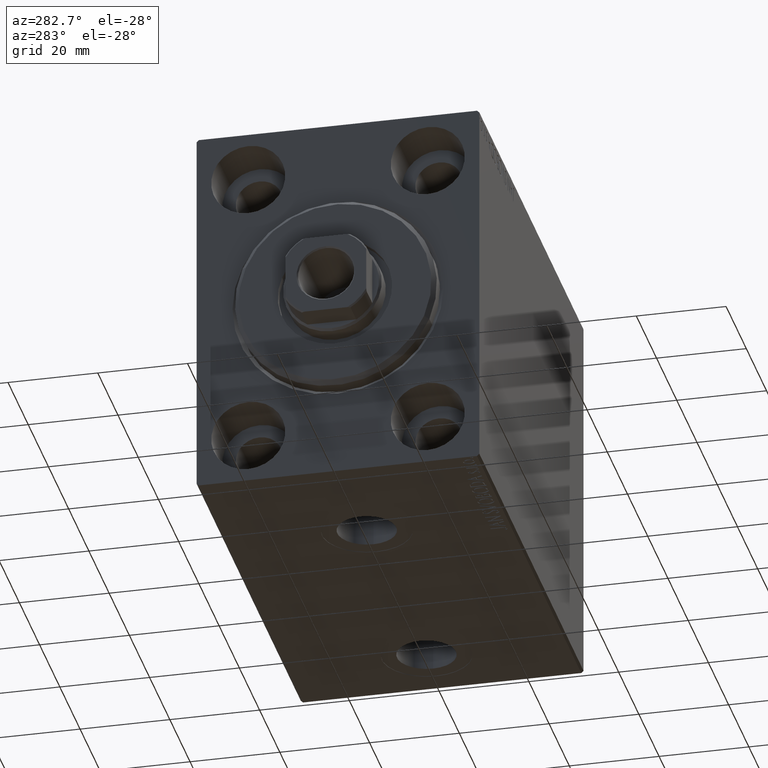
[diagram: clean part render]
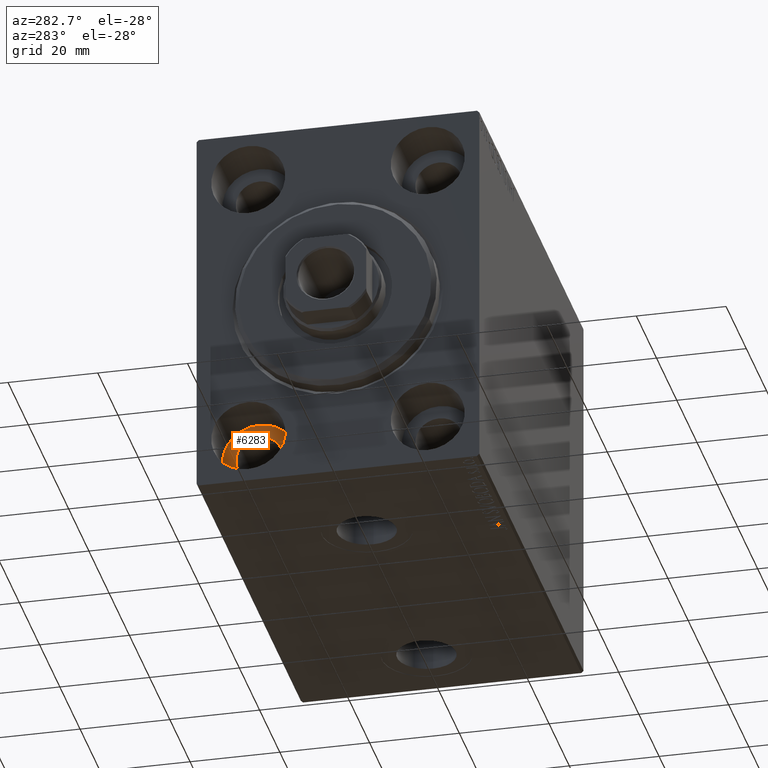
[diagram: same view with one face highlighted and labeled with its STEP entity id]
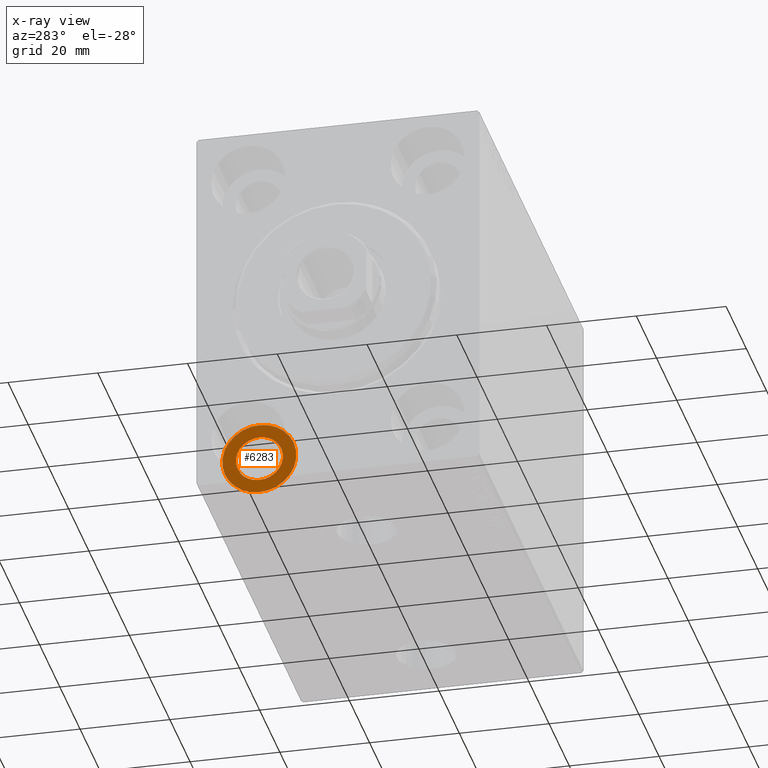
[diagram: x-ray of the same camera — body ghosted, the highlighted face saturated]
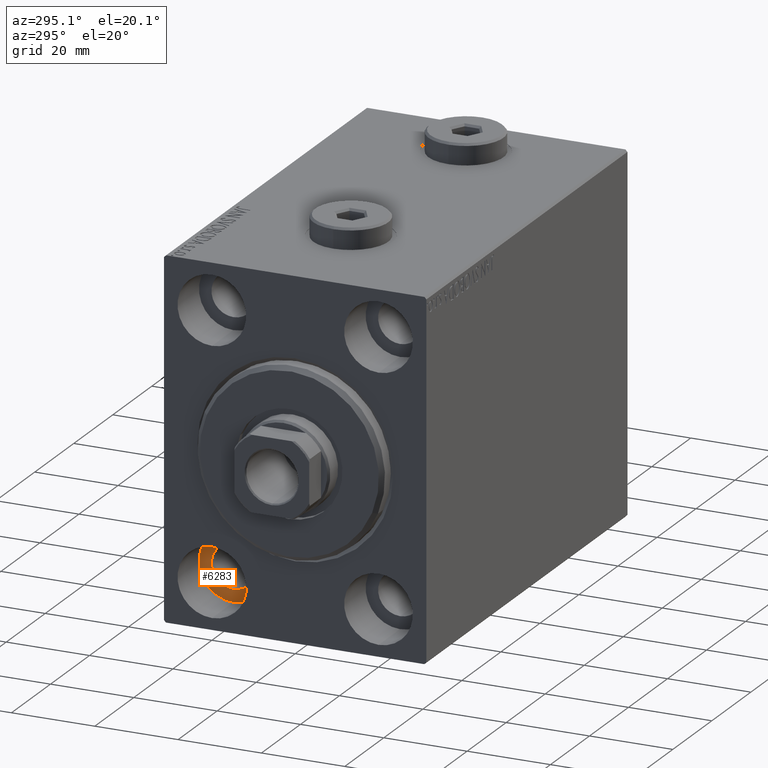
[diagram: same view with one face highlighted and labeled with its STEP entity id]
A machine part, auxiliary view. The second image highlights one B-rep face of the part: STEP entity #6283.
The next image is the same camera in x-ray: the body ghosted, the highlighted face saturated — about 0% of this face is hidden behind the body in this view.
A second angle (auxiliary view) of the same face is appended — the face is thin or edge-on in the first view.
In plain terms, the highlighted planar face has unit normal (-1, 0, 0).
Its self-contained STEP definition (entity closure, byte-faithful):
#814 = CIRCLE ( 'NONE', #5927, 5.250000000000000888 ) ;
#932 = VERTEX_POINT ( 'NONE', #28193 ) ;
#1405 = CARTESIAN_POINT ( 'NONE',  ( 11.00000000000000000, 19.99999999999999645, -31.49999999999999289 ) ) ;
#1628 = DIRECTION ( 'NONE',  ( -1.000000000000000000, 0.000000000000000000, 0.000000000000000000 ) ) ;
#2539 = EDGE_CURVE ( 'NONE', #41600, #16543, #25331, .T. ) ;
#2682 = CIRCLE ( 'NONE', #5565, 8.250000000000000000 ) ;
#4431 = DIRECTION ( 'NONE',  ( -1.000000000000000000, 0.000000000000000000, 0.000000000000000000 ) ) ;
#5565 = AXIS2_PLACEMENT_3D ( 'NONE', #36191, #4431, #21795 ) ;
#5927 = AXIS2_PLACEMENT_3D ( 'NONE', #28408, #7831, #14230 ) ;
#6283 = ADVANCED_FACE ( 'NONE', ( #21806, #35762 ), #14945, .T. ) ;
#7831 = DIRECTION ( 'NONE',  ( -1.000000000000000000, 0.000000000000000000, 0.000000000000000000 ) ) ;
#9496 = CARTESIAN_POINT ( 'NONE',  ( 10.99999999999999645, 19.99999999999999645, -31.49999999999999289 ) ) ;
#9589 = ORIENTED_EDGE ( 'NONE', *, *, #31350, .F. ) ;
#13691 = ORIENTED_EDGE ( 'NONE', *, *, #39584, .F. ) ;
#14230 = DIRECTION ( 'NONE',  ( 0.000000000000000000, 0.000000000000000000, 1.000000000000000000 ) ) ;
#14945 = PLANE ( 'NONE',  #44927 ) ;
#15977 = AXIS2_PLACEMENT_3D ( 'NONE', #1405, #1628, #29062 ) ;
#16543 = VERTEX_POINT ( 'NONE', #39257 ) ;
#21795 = DIRECTION ( 'NONE',  ( 0.000000000000000000, 0.000000000000000000, 1.000000000000000000 ) ) ;
#21806 = FACE_BOUND ( 'NONE', #41955, .T. ) ;
#22534 = DIRECTION ( 'NONE',  ( 0.000000000000000000, 0.000000000000000000, 1.000000000000000000 ) ) ;
#22708 = CARTESIAN_POINT ( 'NONE',  ( 11.00000000000000000, 19.99999999999999645, -39.74999999999999289 ) ) ;
#25331 = CIRCLE ( 'NONE', #15977, 8.250000000000000000 ) ;
#27679 = EDGE_LOOP ( 'NONE', ( #40031, #37994 ) ) ;
#28193 = CARTESIAN_POINT ( 'NONE',  ( 10.99999999999999645, 19.99999999999999645, -26.24999999999999289 ) ) ;
#28408 = CARTESIAN_POINT ( 'NONE',  ( 10.99999999999999645, 19.99999999999999645, -31.49999999999999289 ) ) ;
#28893 = DIRECTION ( 'NONE',  ( -1.000000000000000000, 0.000000000000000000, 0.000000000000000000 ) ) ;
#29062 = DIRECTION ( 'NONE',  ( 0.000000000000000000, 0.000000000000000000, 1.000000000000000000 ) ) ;
#29560 = CARTESIAN_POINT ( 'NONE',  ( 11.00000000000000000, 19.99999999999999645, -31.49999999999999289 ) ) ;
#30164 = CARTESIAN_POINT ( 'NONE',  ( 10.99999999999999645, 19.99999999999999645, -36.74999999999999289 ) ) ;
#31350 = EDGE_CURVE ( 'NONE', #34885, #932, #814, .T. ) ;
#34885 = VERTEX_POINT ( 'NONE', #30164 ) ;
#35762 = FACE_OUTER_BOUND ( 'NONE', #27679, .T. ) ;
#36191 = CARTESIAN_POINT ( 'NONE',  ( 11.00000000000000000, 19.99999999999999645, -31.49999999999999289 ) ) ;
#36295 = AXIS2_PLACEMENT_3D ( 'NONE', #9496, #41024, #22534 ) ;
#37994 = ORIENTED_EDGE ( 'NONE', *, *, #2539, .T. ) ;
#38699 = EDGE_CURVE ( 'NONE', #16543, #41600, #2682, .T. ) ;
#39257 = CARTESIAN_POINT ( 'NONE',  ( 11.00000000000000000, 19.99999999999999645, -23.24999999999999289 ) ) ;
#39584 = EDGE_CURVE ( 'NONE', #932, #34885, #44317, .T. ) ;
#40031 = ORIENTED_EDGE ( 'NONE', *, *, #38699, .T. ) ;
#41024 = DIRECTION ( 'NONE',  ( -1.000000000000000000, 0.000000000000000000, 0.000000000000000000 ) ) ;
#41600 = VERTEX_POINT ( 'NONE', #22708 ) ;
#41955 = EDGE_LOOP ( 'NONE', ( #13691, #9589 ) ) ;
#42836 = DIRECTION ( 'NONE',  ( 0.000000000000000000, 0.000000000000000000, 1.000000000000000000 ) ) ;
#44317 = CIRCLE ( 'NONE', #36295, 5.250000000000000888 ) ;
#44927 = AXIS2_PLACEMENT_3D ( 'NONE', #29560, #28893, #42836 ) ;